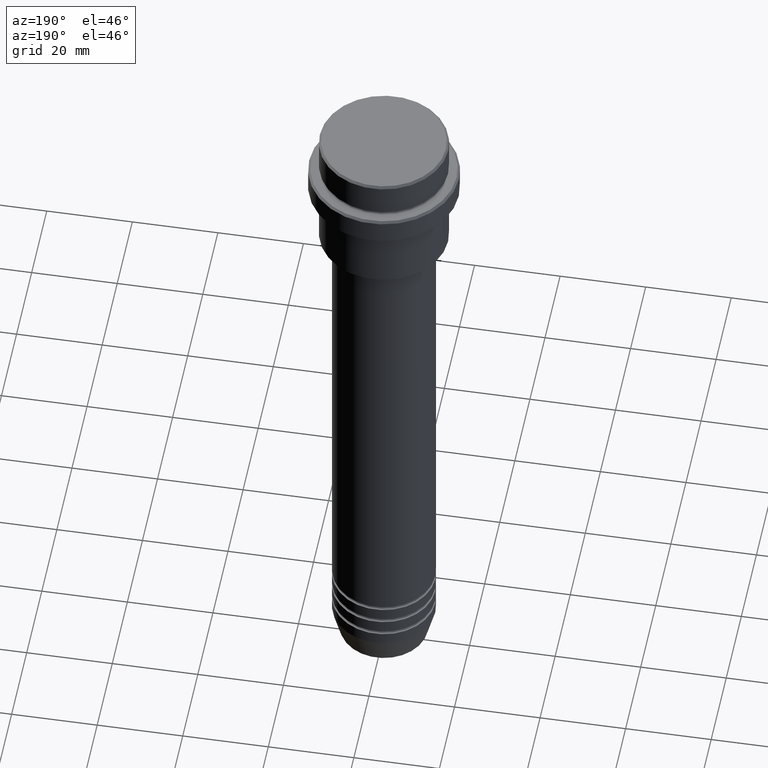
[diagram: clean part render]
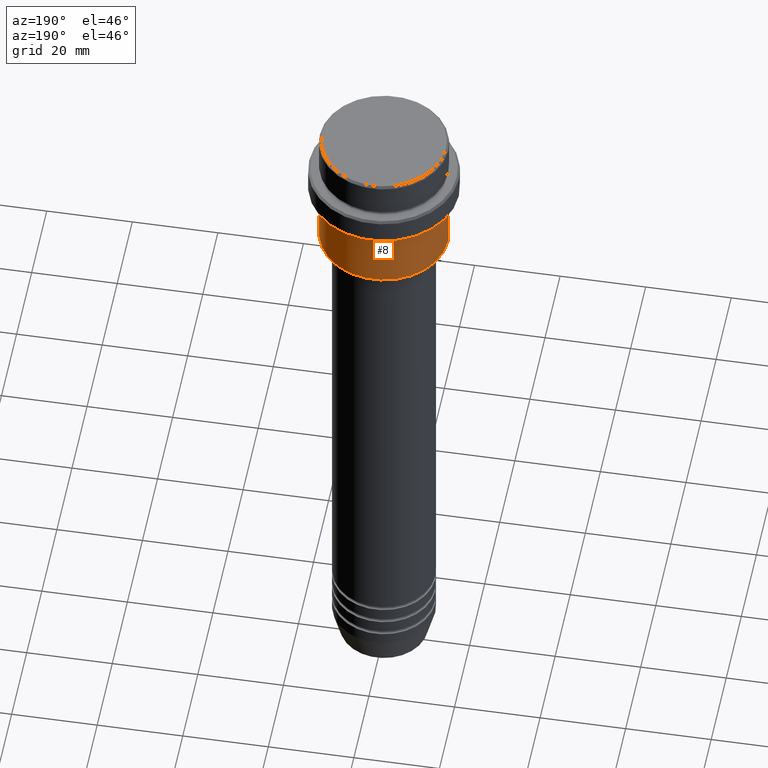
[diagram: same view with one face highlighted and labeled with its STEP entity id]
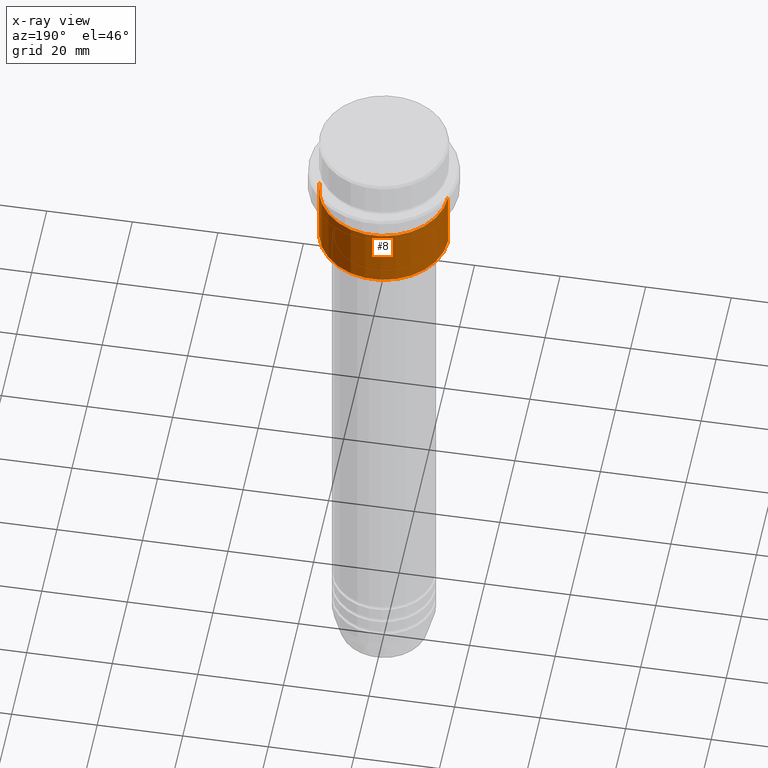
[diagram: x-ray of the same camera — body ghosted, the highlighted face saturated]
A machine part, auxiliary view. The second image highlights one B-rep face of the part: STEP entity #8.
The next image is the same camera in x-ray: the body ghosted, the highlighted face saturated — about 0% of this face is hidden behind the body in this view.
In plain terms, the highlighted cylindrical surface (partial cylindrical patch) has radius 15 mm, axis along (-0, -0, 1).
Its self-contained STEP definition (entity closure, byte-faithful):
#1 = EDGE_CURVE ( 'NONE', #88, #140, #1035, .T. ) ;
#8 = ADVANCED_FACE ( 'NONE', ( #559 ), #297, .T. ) ;
#24 = DIRECTION ( 'NONE',  ( -0.000000000000000000, -0.000000000000000000, 1.000000000000000000 ) ) ;
#67 = DIRECTION ( 'NONE',  ( -0.000000000000000000, -0.000000000000000000, 1.000000000000000000 ) ) ;
#88 = VERTEX_POINT ( 'NONE', #1398 ) ;
#104 = CIRCLE ( 'NONE', #908, 15.00000000000000000 ) ;
#140 = VERTEX_POINT ( 'NONE', #770 ) ;
#200 = CARTESIAN_POINT ( 'NONE',  ( -15.00000000000000355, 1.836970198721029983E-15, -16.00000000000000000 ) ) ;
#208 = DIRECTION ( 'NONE',  ( -0.000000000000000000, -0.000000000000000000, 1.000000000000000000 ) ) ;
#257 = ORIENTED_EDGE ( 'NONE', *, *, #1, .F. ) ;
#288 = DIRECTION ( 'NONE',  ( -0.000000000000000000, -0.000000000000000000, 1.000000000000000000 ) ) ;
#297 = CYLINDRICAL_SURFACE ( 'NONE', #1019, 15.00000000000000000 ) ;
#307 = DIRECTION ( 'NONE',  ( -0.000000000000000000, -0.000000000000000000, 1.000000000000000000 ) ) ;
#398 = CARTESIAN_POINT ( 'NONE',  ( 15.00000000000000000, 0.000000000000000000, 0.000000000000000000 ) ) ;
#506 = VERTEX_POINT ( 'NONE', #943 ) ;
#515 = EDGE_CURVE ( 'NONE', #506, #1241, #572, .T. ) ;
#552 = DIRECTION ( 'NONE',  ( 1.000000000000000000, 0.000000000000000000, 0.000000000000000000 ) ) ;
#559 = FACE_OUTER_BOUND ( 'NONE', #1302, .T. ) ;
#572 = LINE ( 'NONE', #895, #1040 ) ;
#573 = CIRCLE ( 'NONE', #1408, 15.00000000000000178 ) ;
#601 = ORIENTED_EDGE ( 'NONE', *, *, #856, .F. ) ;
#647 = EDGE_CURVE ( 'NONE', #88, #506, #104, .T. ) ;
#770 = CARTESIAN_POINT ( 'NONE',  ( 15.00000000000000178, 0.000000000000000000, -16.00000000000000000 ) ) ;
#779 = VECTOR ( 'NONE', #67, 1000.000000000000000 ) ;
#828 = ORIENTED_EDGE ( 'NONE', *, *, #515, .T. ) ;
#838 = DIRECTION ( 'NONE',  ( 1.000000000000000000, 0.000000000000000000, 0.000000000000000000 ) ) ;
#856 = EDGE_CURVE ( 'NONE', #140, #1241, #573, .T. ) ;
#895 = CARTESIAN_POINT ( 'NONE',  ( -15.00000000000000000, 1.836970198721029589E-15, 0.000000000000000000 ) ) ;
#908 = AXIS2_PLACEMENT_3D ( 'NONE', #1006, #24, #1197 ) ;
#943 = CARTESIAN_POINT ( 'NONE',  ( -15.00000000000000000, 1.836970198721029589E-15, -30.49999999999998934 ) ) ;
#962 = CARTESIAN_POINT ( 'NONE',  ( 0.000000000000000000, 0.000000000000000000, 0.000000000000000000 ) ) ;
#1006 = CARTESIAN_POINT ( 'NONE',  ( 0.000000000000000000, 0.000000000000000000, -30.49999999999998934 ) ) ;
#1019 = AXIS2_PLACEMENT_3D ( 'NONE', #962, #307, #552 ) ;
#1032 = ORIENTED_EDGE ( 'NONE', *, *, #647, .T. ) ;
#1035 = LINE ( 'NONE', #398, #779 ) ;
#1040 = VECTOR ( 'NONE', #208, 1000.000000000000000 ) ;
#1063 = CARTESIAN_POINT ( 'NONE',  ( 0.000000000000000000, 0.000000000000000000, -16.00000000000000000 ) ) ;
#1197 = DIRECTION ( 'NONE',  ( -1.000000000000000000, 0.000000000000000000, 0.000000000000000000 ) ) ;
#1241 = VERTEX_POINT ( 'NONE', #200 ) ;
#1302 = EDGE_LOOP ( 'NONE', ( #1032, #828, #601, #257 ) ) ;
#1398 = CARTESIAN_POINT ( 'NONE',  ( 15.00000000000000000, 0.000000000000000000, -30.49999999999998934 ) ) ;
#1408 = AXIS2_PLACEMENT_3D ( 'NONE', #1063, #288, #838 ) ;